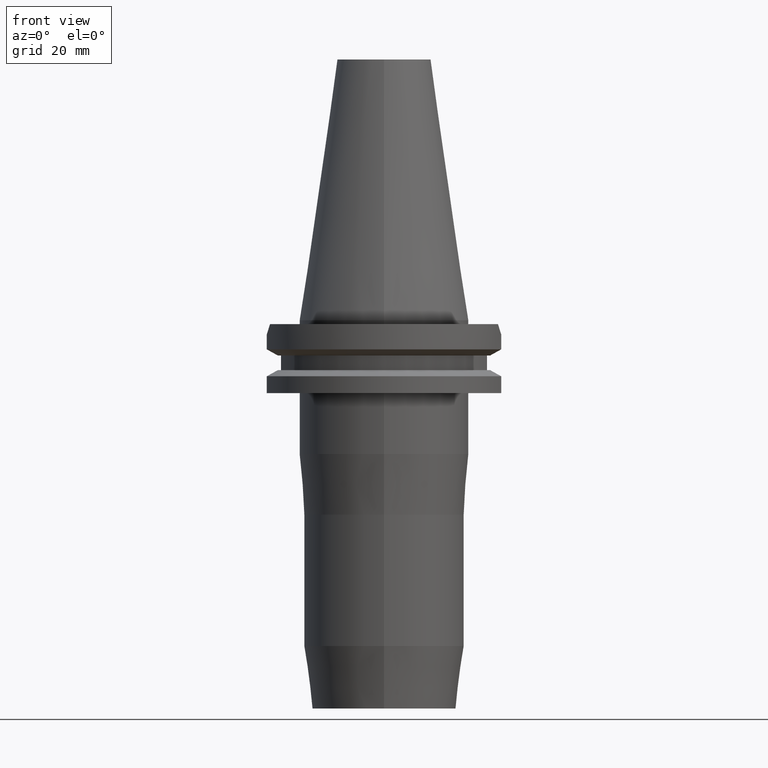
[diagram: clean part render]
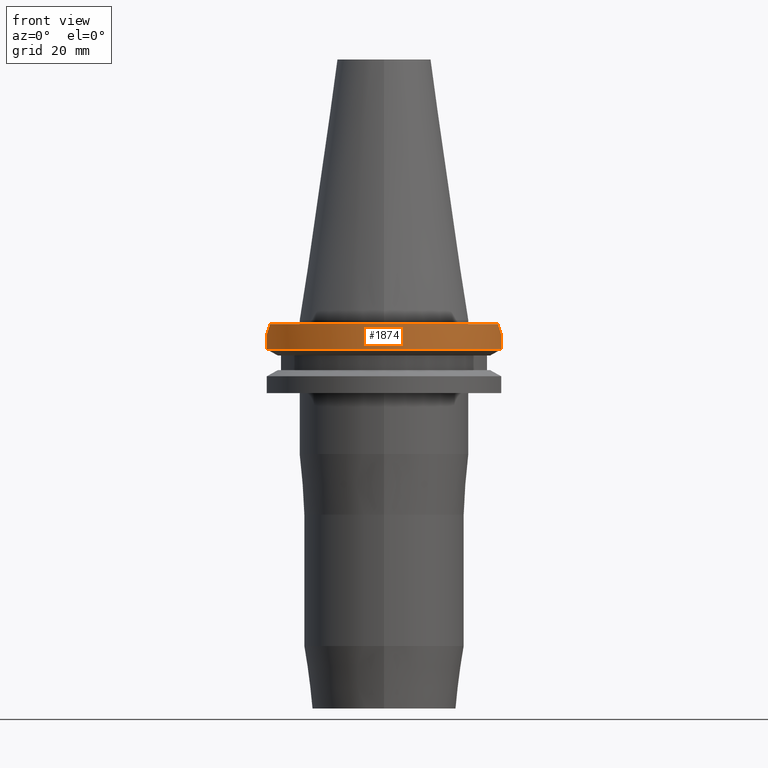
[diagram: same view with one face highlighted and labeled with its STEP entity id]
A machine part, front view. The second image highlights one B-rep face of the part: STEP entity #1874.
In plain terms, the highlighted cylindrical surface (partial cylindrical patch) has radius 31.75 mm, axis along (0, 0, -1).
Its self-contained STEP definition (entity closure, byte-faithful):
#108=CARTESIAN_POINT('',(0.E0,2.164471368983E-14,-1.E0));
#109=DIRECTION('',(0.E0,0.E0,-1.E0));
#110=DIRECTION('',(9.393382785306E-1,-3.429921259843E-1,0.E0));
#111=AXIS2_PLACEMENT_3D('',#108,#109,#110);
#116=CARTESIAN_POINT('',(0.E0,2.164471368983E-14,-1.E0));
#117=DIRECTION('',(0.E0,0.E0,-1.E0));
#118=DIRECTION('',(0.E0,-1.E0,0.E0));
#119=AXIS2_PLACEMENT_3D('',#116,#117,#118);
#575=CARTESIAN_POINT('',(2.982399034335E1,-1.089E1,-1.000000000001E0));
#576=CARTESIAN_POINT('',(3.015017741992E1,-9.996685011754E0,-1.893314988246E0));
#577=CARTESIAN_POINT('',(3.043345108244E1,-9.096596073173E0,-2.793403926827E0));
#578=CARTESIAN_POINT('',(3.067550162589E1,-8.19E0,-3.7E0));
#583=DIRECTION('',(-4.149952334243E-8,-1.554361652636E-7,-1.E0));
#584=VECTOR('',#583,3.901327811715E0);
#585=CARTESIAN_POINT('',(3.067550162589E1,-8.19E0,-3.7E0));
#586=LINE('',#585,#584);
#590=DIRECTION('',(8.604053470649E-9,-3.222588451522E-8,1.E0));
#591=VECTOR('',#590,3.901334354445E0);
#592=CARTESIAN_POINT('',(-3.067550165946E1,-8.189999874276E0,
-7.601334354445E0));
#593=LINE('',#592,#591);
#597=CARTESIAN_POINT('',(-3.067550162589E1,-8.19E0,-3.7E0));
#598=CARTESIAN_POINT('',(-3.043345108244E1,-9.096596073173E0,
-2.793403926827E0));
#599=CARTESIAN_POINT('',(-3.015017741992E1,-9.996685011754E0,
-1.893314988246E0));
#600=CARTESIAN_POINT('',(-2.982399034335E1,-1.089E1,-1.000000000001E0));
#624=CARTESIAN_POINT('',(3.067550146399E1,-8.190000606407E0,-7.601327811715E0));
#674=CARTESIAN_POINT('',(0.E0,1.121722380079E-14,-7.601333230926E0));
#675=DIRECTION('',(0.E0,0.E0,1.E0));
#676=DIRECTION('',(-9.661575315241E-1,-2.579527559055E-1,0.E0));
#677=AXIS2_PLACEMENT_3D('',#674,#675,#676);
#682=CARTESIAN_POINT('',(0.E0,1.121722380079E-14,-7.601333230926E0));
#683=DIRECTION('',(0.E0,0.E0,1.E0));
#684=DIRECTION('',(0.E0,-1.E0,0.E0));
#685=AXIS2_PLACEMENT_3D('',#682,#683,#684);
#1371=VERTEX_POINT('',#624);
#1372=CARTESIAN_POINT('',(3.067550162589E1,-8.19E0,-3.7E0));
#1373=VERTEX_POINT('',#1372);
#1386=CARTESIAN_POINT('',(-3.067550162589E1,-8.19E0,-3.7E0));
#1387=VERTEX_POINT('',#1386);
#1388=CARTESIAN_POINT('',(-3.067550165946E1,-8.189999874276E0,
-7.601334354445E0));
#1389=VERTEX_POINT('',#1388);
#1440=CARTESIAN_POINT('',(0.E0,-3.175E1,-7.601333230926E0));
#1441=VERTEX_POINT('',#1440);
#1445=VERTEX_POINT('',#575);
#1446=VERTEX_POINT('',#600);
#1447=CARTESIAN_POINT('',(-1.432899828923E-14,-3.175E1,-1.E0));
#1448=VERTEX_POINT('',#1447);
#1854=CARTESIAN_POINT('',(0.E0,2.164471368983E-14,7.67425E1));
#1855=DIRECTION('',(0.E0,0.E0,-1.E0));
#1856=DIRECTION('',(0.E0,-1.E0,0.E0));
#1857=AXIS2_PLACEMENT_3D('',#1854,#1855,#1856);
#1858=CYLINDRICAL_SURFACE('',#1857,3.175E1);
#1860=ORIENTED_EDGE('',*,*,#1859,.T.);
#1862=ORIENTED_EDGE('',*,*,#1861,.T.);
#1864=ORIENTED_EDGE('',*,*,#1863,.F.);
#1866=ORIENTED_EDGE('',*,*,#1865,.F.);
#1868=ORIENTED_EDGE('',*,*,#1867,.T.);
#1869=ORIENTED_EDGE('',*,*,#1846,.T.);
#1870=ORIENTED_EDGE('',*,*,#1553,.F.);
#1871=ORIENTED_EDGE('',*,*,#1551,.F.);
#1872=EDGE_LOOP('',(#1860,#1862,#1864,#1866,#1868,#1869,#1870,#1871));
#1873=FACE_OUTER_BOUND('',#1872,.F.);
#112=CIRCLE('',#111,3.175E1);
#120=CIRCLE('',#119,3.175E1);
#579=B_SPLINE_CURVE_WITH_KNOTS('',3,(#575,#576,#577,#578),.UNSPECIFIED.,.F.,.F.,
(4,4),(0.E0,1.E0),.UNSPECIFIED.);
#601=B_SPLINE_CURVE_WITH_KNOTS('',3,(#597,#598,#599,#600),.UNSPECIFIED.,.F.,.F.,
(4,4),(0.E0,1.E0),.UNSPECIFIED.);
#678=CIRCLE('',#677,3.175E1);
#686=CIRCLE('',#685,3.175E1);
#1551=EDGE_CURVE('',#1445,#1448,#112,.T.);
#1553=EDGE_CURVE('',#1448,#1446,#120,.T.);
#1846=EDGE_CURVE('',#1387,#1446,#601,.T.);
#1859=EDGE_CURVE('',#1445,#1373,#579,.T.);
#1861=EDGE_CURVE('',#1373,#1371,#586,.T.);
#1863=EDGE_CURVE('',#1441,#1371,#686,.T.);
#1865=EDGE_CURVE('',#1389,#1441,#678,.T.);
#1867=EDGE_CURVE('',#1389,#1387,#593,.T.);
#1874=ADVANCED_FACE('',(#1873),#1858,.T.);